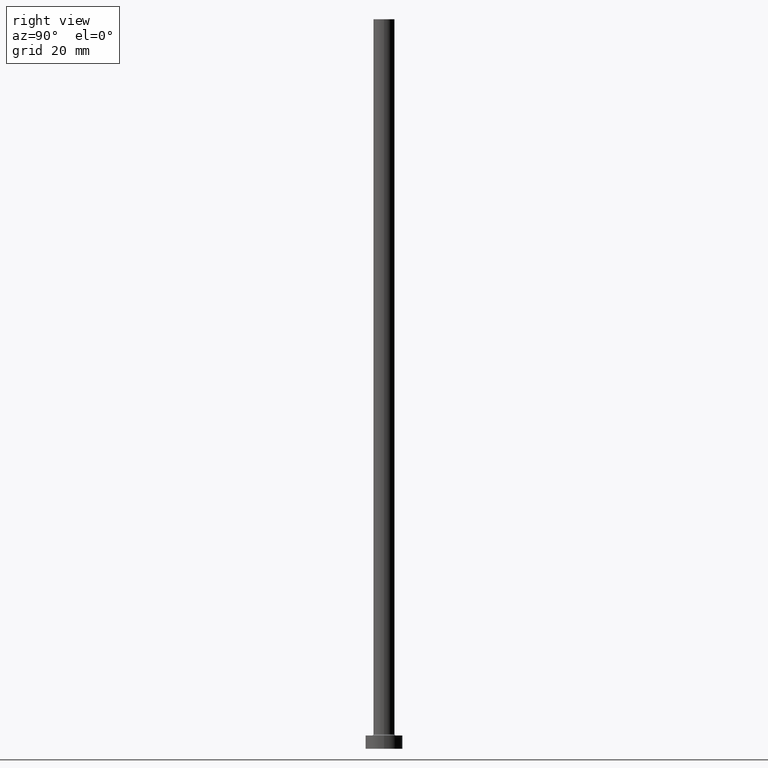
[diagram: clean part render]
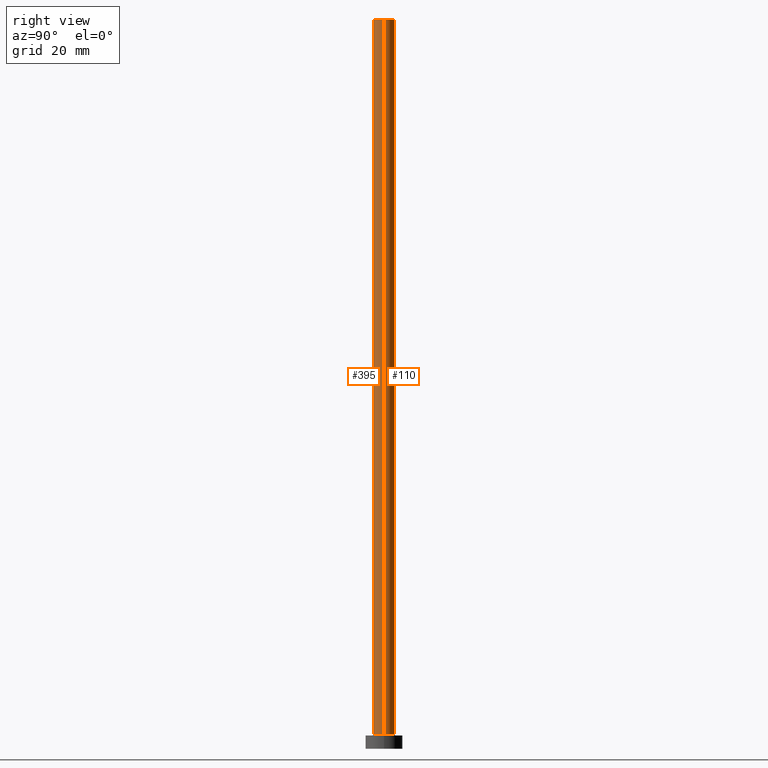
[diagram: same view with one multi-face feature highlighted, each face labeled with its STEP entity id]
A machine part, right view. The highlighted faces form ONE feature: a constant-radius fillet chain: 2 tangent blend faces with common blend radius 4 mm. The faces share edges in the B-rep.
Their STEP definitions:
[1] entity #110 (Cylinder):
#30 = VECTOR ( 'NONE', #157, 1000.000000000000000 ) ;
#45 = ORIENTED_EDGE ( 'NONE', *, *, #413, .T. ) ;
#53 = VECTOR ( 'NONE', #358, 1000.000000000000000 ) ;
#55 = DIRECTION ( 'NONE',  ( -1.000000000000000000, 0.000000000000000000, 0.000000000000000000 ) ) ;
#63 = DIRECTION ( 'NONE',  ( 0.000000000000000000, 0.000000000000000000, 1.000000000000000000 ) ) ;
#66 = EDGE_CURVE ( 'NONE', #279, #166, #401, .T. ) ;
#71 = CARTESIAN_POINT ( 'NONE',  ( 4.000000000000000000, 4.898587196589412829E-16, 5.500000000000005329 ) ) ;
#76 = ORIENTED_EDGE ( 'NONE', *, *, #350, .F. ) ;
#103 = CARTESIAN_POINT ( 'NONE',  ( 0.000000000000000000, 0.000000000000000000, 275.0000000000000000 ) ) ;
#108 = CARTESIAN_POINT ( 'NONE',  ( 4.000000000000000000, 4.898587196589412829E-16, 275.0000000000000000 ) ) ;
#110 = ADVANCED_FACE ( 'NONE', ( #426 ), #177, .T. ) ;
#147 = DIRECTION ( 'NONE',  ( 1.000000000000000000, 0.000000000000000000, 0.000000000000000000 ) ) ;
#157 = DIRECTION ( 'NONE',  ( -0.000000000000000000, -0.000000000000000000, -1.000000000000000000 ) ) ;
#166 = VERTEX_POINT ( 'NONE', #382 ) ;
#168 = DIRECTION ( 'NONE',  ( 1.000000000000000000, 0.000000000000000000, 0.000000000000000000 ) ) ;
#177 = CYLINDRICAL_SURFACE ( 'NONE', #431, 4.000000000000000000 ) ;
#195 = CIRCLE ( 'NONE', #455, 4.000000000000000000 ) ;
#206 = CARTESIAN_POINT ( 'NONE',  ( 0.000000000000000000, 0.000000000000000000, 275.0000000000000000 ) ) ;
#219 = CARTESIAN_POINT ( 'NONE',  ( -4.000000000000000000, 0.000000000000000000, 5.500000000000005329 ) ) ;
#220 = EDGE_CURVE ( 'NONE', #301, #335, #195, .T. ) ;
#223 = CARTESIAN_POINT ( 'NONE',  ( -4.000000000000000000, 0.000000000000000000, 275.0000000000000000 ) ) ;
#243 = EDGE_LOOP ( 'NONE', ( #315, #45, #436, #76 ) ) ;
#264 = CARTESIAN_POINT ( 'NONE',  ( 4.000000000000000000, 4.898587196589412829E-16, 275.0000000000000000 ) ) ;
#279 = VERTEX_POINT ( 'NONE', #108 ) ;
#301 = VERTEX_POINT ( 'NONE', #71 ) ;
#315 = ORIENTED_EDGE ( 'NONE', *, *, #66, .F. ) ;
#316 = DIRECTION ( 'NONE',  ( -0.000000000000000000, -0.000000000000000000, -1.000000000000000000 ) ) ;
#330 = LINE ( 'NONE', #223, #53 ) ;
#335 = VERTEX_POINT ( 'NONE', #219 ) ;
#350 = EDGE_CURVE ( 'NONE', #166, #335, #330, .T. ) ;
#353 = CARTESIAN_POINT ( 'NONE',  ( 0.000000000000000000, 0.000000000000000000, 5.500000000000005329 ) ) ;
#358 = DIRECTION ( 'NONE',  ( -0.000000000000000000, -0.000000000000000000, -1.000000000000000000 ) ) ;
#362 = AXIS2_PLACEMENT_3D ( 'NONE', #103, #456, #168 ) ;
#382 = CARTESIAN_POINT ( 'NONE',  ( -4.000000000000000000, 0.000000000000000000, 275.0000000000000000 ) ) ;
#394 = LINE ( 'NONE', #264, #30 ) ;
#401 = CIRCLE ( 'NONE', #362, 4.000000000000000000 ) ;
#413 = EDGE_CURVE ( 'NONE', #279, #301, #394, .T. ) ;
#426 = FACE_OUTER_BOUND ( 'NONE', #243, .T. ) ;
#431 = AXIS2_PLACEMENT_3D ( 'NONE', #206, #316, #55 ) ;
#436 = ORIENTED_EDGE ( 'NONE', *, *, #220, .T. ) ;
#455 = AXIS2_PLACEMENT_3D ( 'NONE', #353, #63, #147 ) ;
#456 = DIRECTION ( 'NONE',  ( 0.000000000000000000, 0.000000000000000000, 1.000000000000000000 ) ) ;
[2] entity #395 (Cylinder):
#20 = CARTESIAN_POINT ( 'NONE',  ( 0.000000000000000000, 0.000000000000000000, 5.500000000000005329 ) ) ;
#30 = VECTOR ( 'NONE', #157, 1000.000000000000000 ) ;
#50 = EDGE_LOOP ( 'NONE', ( #368, #409, #345, #155 ) ) ;
#53 = VECTOR ( 'NONE', #358, 1000.000000000000000 ) ;
#71 = CARTESIAN_POINT ( 'NONE',  ( 4.000000000000000000, 4.898587196589412829E-16, 5.500000000000005329 ) ) ;
#84 = CIRCLE ( 'NONE', #274, 4.000000000000000000 ) ;
#108 = CARTESIAN_POINT ( 'NONE',  ( 4.000000000000000000, 4.898587196589412829E-16, 275.0000000000000000 ) ) ;
#125 = CYLINDRICAL_SURFACE ( 'NONE', #188, 4.000000000000000000 ) ;
#152 = DIRECTION ( 'NONE',  ( 1.000000000000000000, 0.000000000000000000, 0.000000000000000000 ) ) ;
#155 = ORIENTED_EDGE ( 'NONE', *, *, #460, .T. ) ;
#157 = DIRECTION ( 'NONE',  ( -0.000000000000000000, -0.000000000000000000, -1.000000000000000000 ) ) ;
#166 = VERTEX_POINT ( 'NONE', #382 ) ;
#188 = AXIS2_PLACEMENT_3D ( 'NONE', #272, #228, #230 ) ;
#199 = FACE_OUTER_BOUND ( 'NONE', #50, .T. ) ;
#219 = CARTESIAN_POINT ( 'NONE',  ( -4.000000000000000000, 0.000000000000000000, 5.500000000000005329 ) ) ;
#223 = CARTESIAN_POINT ( 'NONE',  ( -4.000000000000000000, 0.000000000000000000, 275.0000000000000000 ) ) ;
#228 = DIRECTION ( 'NONE',  ( -0.000000000000000000, -0.000000000000000000, -1.000000000000000000 ) ) ;
#230 = DIRECTION ( 'NONE',  ( -1.000000000000000000, 0.000000000000000000, 0.000000000000000000 ) ) ;
#264 = CARTESIAN_POINT ( 'NONE',  ( 4.000000000000000000, 4.898587196589412829E-16, 275.0000000000000000 ) ) ;
#272 = CARTESIAN_POINT ( 'NONE',  ( 0.000000000000000000, 0.000000000000000000, 275.0000000000000000 ) ) ;
#273 = EDGE_CURVE ( 'NONE', #166, #279, #84, .T. ) ;
#274 = AXIS2_PLACEMENT_3D ( 'NONE', #392, #430, #152 ) ;
#279 = VERTEX_POINT ( 'NONE', #108 ) ;
#285 = AXIS2_PLACEMENT_3D ( 'NONE', #20, #447, #375 ) ;
#301 = VERTEX_POINT ( 'NONE', #71 ) ;
#330 = LINE ( 'NONE', #223, #53 ) ;
#335 = VERTEX_POINT ( 'NONE', #219 ) ;
#345 = ORIENTED_EDGE ( 'NONE', *, *, #350, .T. ) ;
#350 = EDGE_CURVE ( 'NONE', #166, #335, #330, .T. ) ;
#358 = DIRECTION ( 'NONE',  ( -0.000000000000000000, -0.000000000000000000, -1.000000000000000000 ) ) ;
#368 = ORIENTED_EDGE ( 'NONE', *, *, #413, .F. ) ;
#375 = DIRECTION ( 'NONE',  ( 1.000000000000000000, 0.000000000000000000, 0.000000000000000000 ) ) ;
#382 = CARTESIAN_POINT ( 'NONE',  ( -4.000000000000000000, 0.000000000000000000, 275.0000000000000000 ) ) ;
#392 = CARTESIAN_POINT ( 'NONE',  ( 0.000000000000000000, 0.000000000000000000, 275.0000000000000000 ) ) ;
#394 = LINE ( 'NONE', #264, #30 ) ;
#395 = ADVANCED_FACE ( 'NONE', ( #199 ), #125, .T. ) ;
#409 = ORIENTED_EDGE ( 'NONE', *, *, #273, .F. ) ;
#413 = EDGE_CURVE ( 'NONE', #279, #301, #394, .T. ) ;
#430 = DIRECTION ( 'NONE',  ( 0.000000000000000000, 0.000000000000000000, 1.000000000000000000 ) ) ;
#432 = CIRCLE ( 'NONE', #285, 4.000000000000000000 ) ;
#447 = DIRECTION ( 'NONE',  ( 0.000000000000000000, 0.000000000000000000, 1.000000000000000000 ) ) ;
#460 = EDGE_CURVE ( 'NONE', #335, #301, #432, .T. ) ;